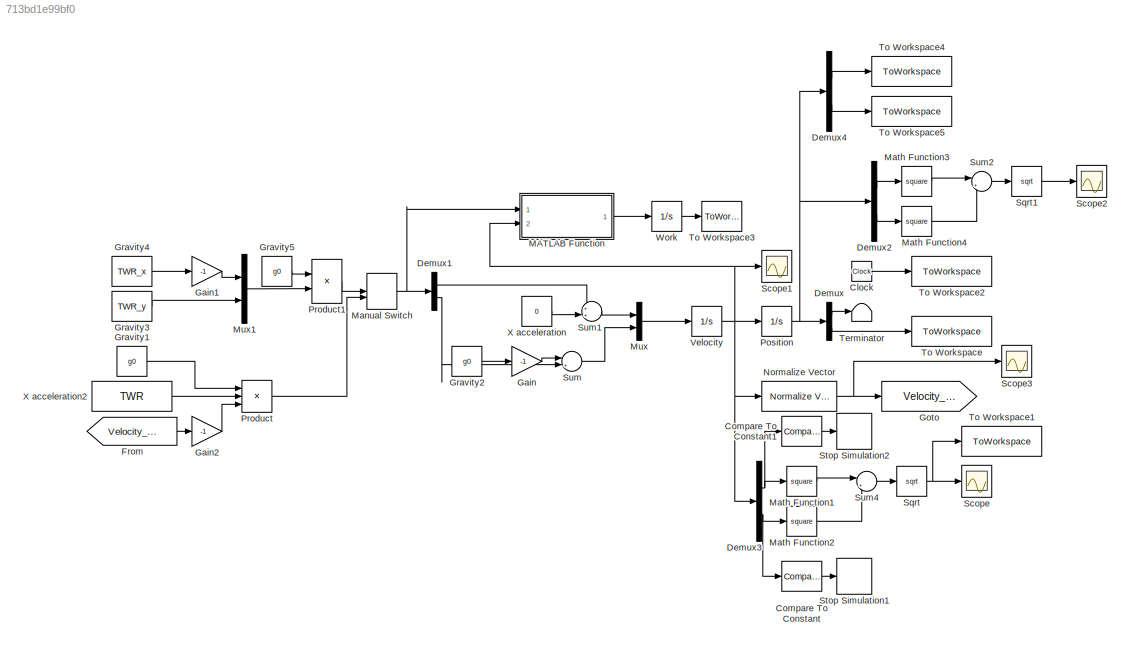
MODEL slx_713bd1e99bf0
KIND model
CONFIG AbsTol = auto
CONFIG FixedStep = .1
CONFIG MaxStep = auto
CONFIG MinStep = auto
CONFIG RelTol = 1e-10
CONFIG SampleTimeConstraint = Unconstrained
CONFIG Solver = ode45
CONFIG SolverMode = Auto
CONFIG SolverName = ode45
CONFIG StartTime = 0.0
CONFIG StopTime = 100
BLOCK [Clock] Clock
BLOCK [Reference] Compare To Constant  REF=simulink/Logic and Bit
Operations/Compare
To Constant
  OutDataTypeStr = boolean
  Ports = [1, 1]
  SourceBlock = simulink/Logic and Bit\nOperations/Compare\nTo Constant
  SourceType = Compare To Constant
  ZeroCross = on
  const = -0.01
  relop = >=
BLOCK [Reference] Compare To Constant1  REF=simulink/Logic and Bit
Operations/Compare
To Constant
  OutDataTypeStr = boolean
  Ports = [1, 1]
  SourceBlock = simulink/Logic and Bit\nOperations/Compare\nTo Constant
  SourceType = Compare To Constant
  ZeroCross = on
  const = 0.01
  relop = <=
BLOCK [Demux] Demux
  DisplayOption = bar
  Outputs = 2
  Ports = [1, 2]
BLOCK [Demux] Demux1
  DisplayOption = bar
  Outputs = 2
  Ports = [1, 2]
BLOCK [Demux] Demux2
  DisplayOption = bar
  Outputs = 2
  Ports = [1, 2]
BLOCK [Demux] Demux3
  DisplayOption = bar
  Outputs = 2
  Ports = [1, 2]
BLOCK [Demux] Demux4
  DisplayOption = bar
  Outputs = 2
  Ports = [1, 2]
BLOCK [From] From
  GotoTag = Velocity_Vector
BLOCK [Gain] Gain
  Gain = -1
  OutDataTypeStr = Inherit: Inherit via internal rule
  ParamDataTypeStr = Inherit: Inherit via internal rule
  SaturateOnIntegerOverflow = off
BLOCK [Gain] Gain1
  Gain = -1
  OutDataTypeStr = Inherit: Inherit via internal rule
  ParamDataTypeStr = Inherit: Inherit via internal rule
  SaturateOnIntegerOverflow = off
BLOCK [Gain] Gain2
  Gain = -1
  OutDataTypeStr = Inherit: Inherit via internal rule
  ParamDataTypeStr = Inherit: Inherit via internal rule
  SaturateOnIntegerOverflow = off
BLOCK [Goto] Goto
  GotoTag = Velocity_Vector
BLOCK [Constant] Gravity1
  Value = g0
BLOCK [Constant] Gravity2
  Value = g0
BLOCK [Constant] Gravity3
  Value = TWR_y
BLOCK [Constant] Gravity4
  Value = TWR_x
BLOCK [Constant] Gravity5
  Value = g0
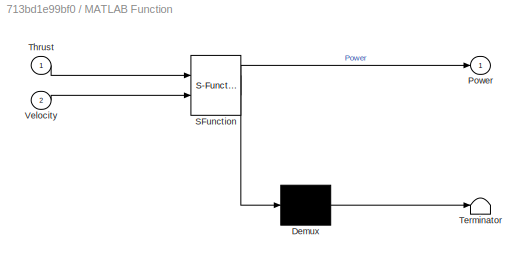
BLOCK [SubSystem] MATLAB Function
  ErrorFcn = Stateflow.Translate.translate
  PermitHierarchicalResolution = ExplicitOnly
  Ports = [2, 1]
  RequestExecContextInheritance = off
  SFBlockType = MATLAB Function
  TreatAsAtomicUnit = on
BLOCK [Demux] MATLAB Function/ Demux 
  Outputs = 1
  Ports = [1, 1]
BLOCK [S-Function] MATLAB Function/ SFunction 
  EnableBusSupport = on
  FunctionName = sf_sfun
  PortCounts = [2 2]
  Ports = [2, 2]
  Tag = Stateflow S-Function LandingSimulation_simple 2
BLOCK [Terminator] MATLAB Function/ Terminator 
BLOCK [Outport] MATLAB Function/Power
  IconDisplay = Port number
BLOCK [Inport] MATLAB Function/Thrust
  IconDisplay = Port number
BLOCK [Inport] MATLAB Function/Velocity
  IconDisplay = Port number
  Port = 2
BLOCK [ManualSwitch] Manual Switch
  CurrentSetting = 0
BLOCK [Math] Math Function1
  Operator = square
  Ports = [1, 1]
BLOCK [Math] Math Function2
  Operator = square
  Ports = [1, 1]
BLOCK [Math] Math Function3
  Operator = square
  Ports = [1, 1]
BLOCK [Math] Math Function4
  Operator = square
  Ports = [1, 1]
BLOCK [Mux] Mux
  DisplayOption = bar
  Inputs = 2
  Ports = [2, 1]
BLOCK [Mux] Mux1
  DisplayOption = bar
  Inputs = 2
  Ports = [2, 1]
BLOCK [Reference] Normalize Vector  REF=vrlib/Utilities/Normalize Vector
  Ports = [1, 1]
  SourceBlock = vrlib/Utilities/Normalize Vector
  SourceType = Normalize Vector
  maxzero = 0
BLOCK [Integrator] Position
  InitialCondition = [0,0]
  Ports = [1, 1]
BLOCK [Product] Product
  InputSameDT = off
  Inputs = 3
  OutDataTypeStr = Inherit: Inherit via internal rule
  Ports = [3, 1]
  RndMeth = Floor
  SaturateOnIntegerOverflow = off
BLOCK [Product] Product1
  InputSameDT = off
  OutDataTypeStr = Inherit: Inherit via internal rule
  Ports = [2, 1]
  RndMeth = Floor
  SaturateOnIntegerOverflow = off
BLOCK [Scope] Scope
  Floating = off
  NumInputPorts = 1
  Ports = [1]
  YMax = 0.00375
  YMin = 0.00075
BLOCK [Scope] Scope1
  Floating = off
  NumInputPorts = 1
  Ports = [1]
  SaveName = ScopeData1
  YMax = 0.00375
  YMin = 0.00075
BLOCK [Scope] Scope2
  Floating = off
  NumInputPorts = 1
  Ports = [1]
  SaveName = ScopeData2
  YMax = 0.00375
  YMin = 0.00075
BLOCK [Scope] Scope3
  Floating = off
  NumInputPorts = 1
  Ports = [1]
  SaveName = ScopeData3
  YMax = 0.00375
  YMin = 0.00075
BLOCK [Sqrt] Sqrt
BLOCK [Sqrt] Sqrt1
BLOCK [Stop] Stop Simulation1
BLOCK [Stop] Stop Simulation2
BLOCK [Sum] Sum
  IconShape = round
  InputSameDT = off
  Inputs = |++
  OutDataTypeStr = Inherit: Inherit via internal rule
  Ports = [2, 1]
  SaturateOnIntegerOverflow = off
BLOCK [Sum] Sum1
  IconShape = round
  InputSameDT = off
  Inputs = ++|
  OutDataTypeStr = Inherit: Inherit via internal rule
  Ports = [2, 1]
  SaturateOnIntegerOverflow = off
BLOCK [Sum] Sum2
  IconShape = round
  InputSameDT = off
  Inputs = |++
  OutDataTypeStr = Inherit: Inherit via internal rule
  Ports = [2, 1]
  SaturateOnIntegerOverflow = off
BLOCK [Sum] Sum4
  IconShape = round
  InputSameDT = off
  Inputs = |++
  OutDataTypeStr = Inherit: Inherit via internal rule
  Ports = [2, 1]
  SaturateOnIntegerOverflow = off
BLOCK [Terminator] Terminator
BLOCK [ToWorkspace] To Workspace
  FixptAsFi = on
  MaxDataPoints = 1
  Ports = [1]
  SampleTime = -1
  Save2DSignal = 3-D array (concatenate along third dimension)
  VariableName = Final_Altitude
BLOCK [ToWorkspace] To Workspace1
  FixptAsFi = on
  MaxDataPoints = 1
  Ports = [1]
  SampleTime = -1
  Save2DSignal = 3-D array (concatenate along third dimension)
  VariableName = Final_Speed
BLOCK [ToWorkspace] To Workspace2
  FixptAsFi = on
  MaxDataPoints = 1
  Ports = [1]
  SampleTime = -1
  Save2DSignal = 3-D array (concatenate along third dimension)
  VariableName = BurnTime
BLOCK [ToWorkspace] To Workspace3
  FixptAsFi = on
  MaxDataPoints = 1
  Ports = [1]
  SampleTime = -1
  Save2DSignal = 3-D array (concatenate along third dimension)
  VariableName = Work
BLOCK [ToWorkspace] To Workspace4
  FixptAsFi = on
  Ports = [1]
  SampleTime = -1
  Save2DSignal = 3-D array (concatenate along third dimension)
  VariableName = X
BLOCK [ToWorkspace] To Workspace5
  FixptAsFi = on
  Ports = [1]
  SampleTime = -1
  Save2DSignal = 3-D array (concatenate along third dimension)
  VariableName = Y
BLOCK [Integrator] Velocity
  InitialCondition = [Starting_X_Speed,Starting_Y_Speed]
  Ports = [1, 1]
BLOCK [Integrator] Work
  Ports = [1, 1]
BLOCK [Constant] X acceleration
  Value = 0
BLOCK [Constant] X acceleration2
  Value = TWR
LINE Clock:1 -> To Workspace2:1
LINE Compare To Constant1:1 -> Stop Simulation2:1
LINE Compare To Constant:1 -> Stop Simulation1:1
LINE Demux1:1 -> Sum1:1
LINE Demux1:2 -> Sum:2
LINE Demux2:1 -> Math Function3:1
LINE Demux2:2 -> Math Function4:1
NET Demux3:1 -> Compare To Constant1:1, Math Function1:1
NET Demux3:2 -> Compare To Constant:1, Math Function2:1
LINE Demux4:1 -> To Workspace4:1
LINE Demux4:2 -> To Workspace5:1
LINE Demux:1 -> Terminator:1
LINE Demux:2 -> To Workspace:1
LINE From:1 -> Gain2:1
LINE Gain1:1 -> Mux1:1
LINE Gain2:1 -> Product:3
LINE Gain:1 -> Sum:1
LINE Gravity1:1 -> Product:1
LINE Gravity2:1 -> Gain:1
LINE Gravity3:1 -> Mux1:2
LINE Gravity4:1 -> Gain1:1
LINE Gravity5:1 -> Product1:1
LINE MATLAB Function:1 -> Work:1
NET Manual Switch:1 -> Demux1:1, MATLAB Function:1
LINE Math Function1:1 -> Sum4:1
LINE Math Function2:1 -> Sum4:2
LINE Math Function3:1 -> Sum2:1
LINE Math Function4:1 -> Sum2:2
LINE Mux1:1 -> Product1:2
LINE Mux:1 -> Velocity:1
NET Normalize Vector:1 -> Goto:1, Scope3:1
NET Position:1 -> Demux2:1, Demux4:1, Demux:1
LINE Product1:1 -> Manual Switch:1
LINE Product:1 -> Manual Switch:2
LINE Sqrt1:1 -> Scope2:1
NET Sqrt:1 -> Scope:1, To Workspace1:1
LINE Sum1:1 -> Mux:1
LINE Sum2:1 -> Sqrt1:1
LINE Sum4:1 -> Sqrt:1
LINE Sum:1 -> Mux:2
NET Velocity:1 -> Demux3:1, MATLAB Function:2, Normalize Vector:1, Position:1, Scope1:1
LINE Work:1 -> To Workspace3:1
LINE X acceleration2:1 -> Product:2
LINE X acceleration:1 -> Sum1:2
note: NET lines group one-source signal fan-out (src -> all destinations, sorted); 1:1 wires keep LINE
CHART MATLAB Function states=1 transitions=1
  STATE_LABEL 'eML_blk_kernel()'
  STATE_LABEL 'SCRIPT:\nfunction Power = fcn(Thrust,Velocity)\n%#codegen\n\nPower = dot(Thrust,Velocity);'
